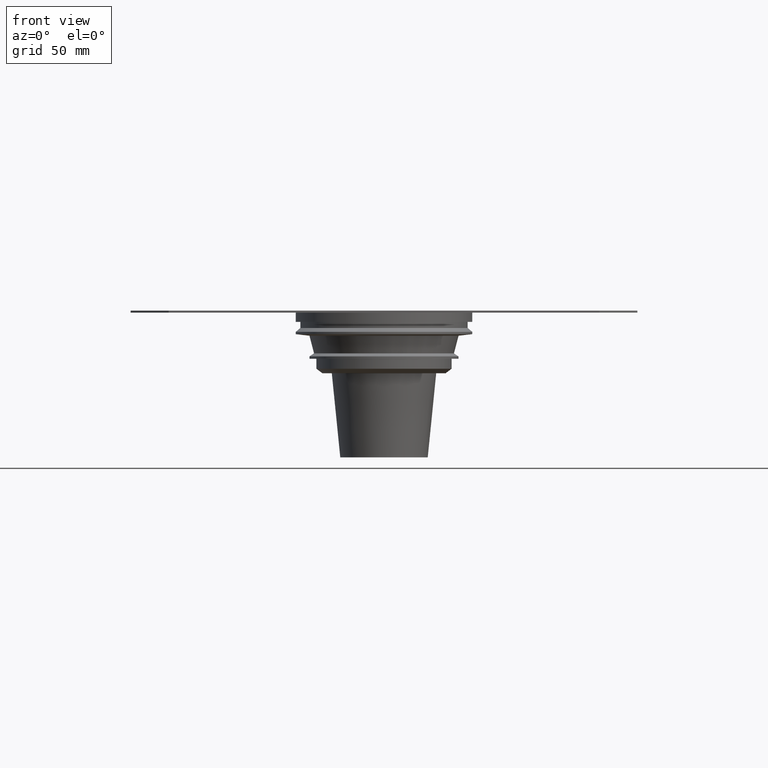
[diagram: clean part render]
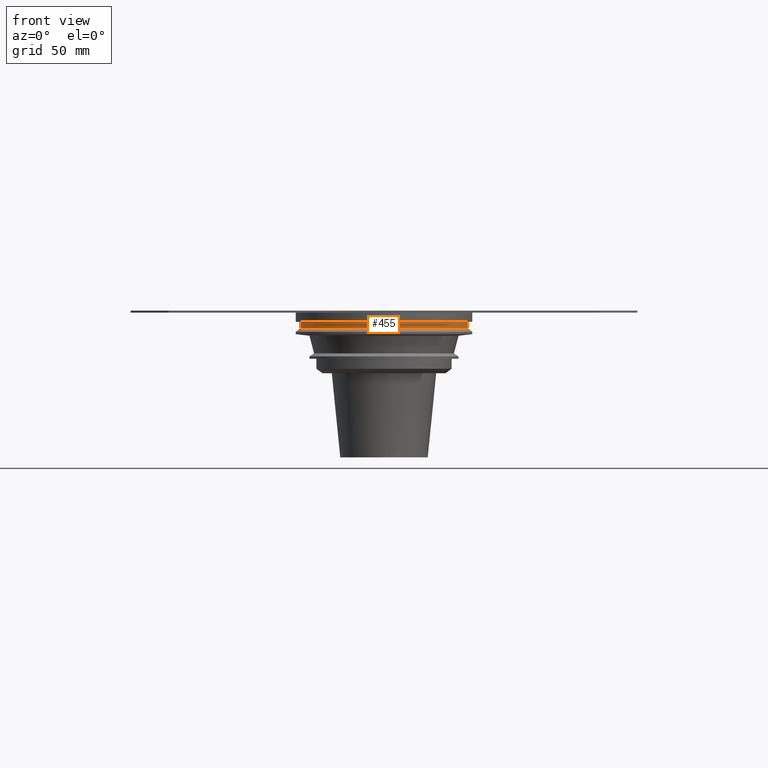
[diagram: same view with one face highlighted and labeled with its STEP entity id]
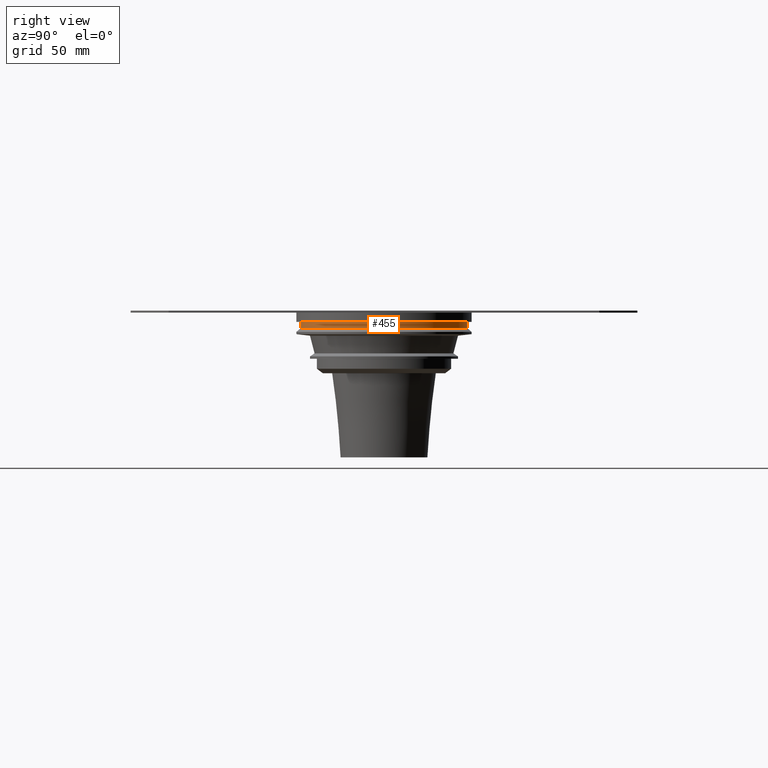
[diagram: same view with one face highlighted and labeled with its STEP entity id]
A machine part, front view. The second image highlights one B-rep face of the part: STEP entity #455.
A second angle (right view) of the same face is appended — the face is thin or edge-on in the first view.
In plain terms, the highlighted cylindrical surface (bore or boss wall) has radius 54.5 mm, axis along (0, 0, -1).
Its self-contained STEP definition (entity closure, byte-faithful):
#32=CIRCLE('',#484,54.5);
#52=CIRCLE('',#524,54.5);
#59=CYLINDRICAL_SURFACE('',#525,54.5);
#136=ORIENTED_EDGE('',*,*,#183,.T.);
#137=ORIENTED_EDGE('',*,*,#203,.F.);
#183=EDGE_CURVE('',#223,#223,#32,.T.);
#203=EDGE_CURVE('',#243,#243,#52,.T.);
#223=VERTEX_POINT('',#726);
#243=VERTEX_POINT('',#786);
#344=EDGE_LOOP('',(#136));
#345=EDGE_LOOP('',(#137));
#402=FACE_BOUND('',#344,.T.);
#403=FACE_BOUND('',#345,.T.);
#455=ADVANCED_FACE('',(#402,#403),#59,.T.);
#484=AXIS2_PLACEMENT_3D('',#725,#580,#581);
#524=AXIS2_PLACEMENT_3D('',#785,#660,#661);
#525=AXIS2_PLACEMENT_3D('',#787,#662,#663);
#580=DIRECTION('',(0.,0.,-1.));
#581=DIRECTION('',(-1.,0.,0.));
#660=DIRECTION('',(0.,0.,-1.));
#661=DIRECTION('',(-1.,0.,0.));
#662=DIRECTION('',(0.,0.,-1.));
#663=DIRECTION('',(-1.,0.,0.));
#725=CARTESIAN_POINT('',(0.,0.,-6.));
#726=CARTESIAN_POINT('',(-54.5,0.,-6.));
#785=CARTESIAN_POINT('',(0.,0.,-10.));
#786=CARTESIAN_POINT('',(-54.5,0.,-10.));
#787=CARTESIAN_POINT('',(0.,0.,-50.));